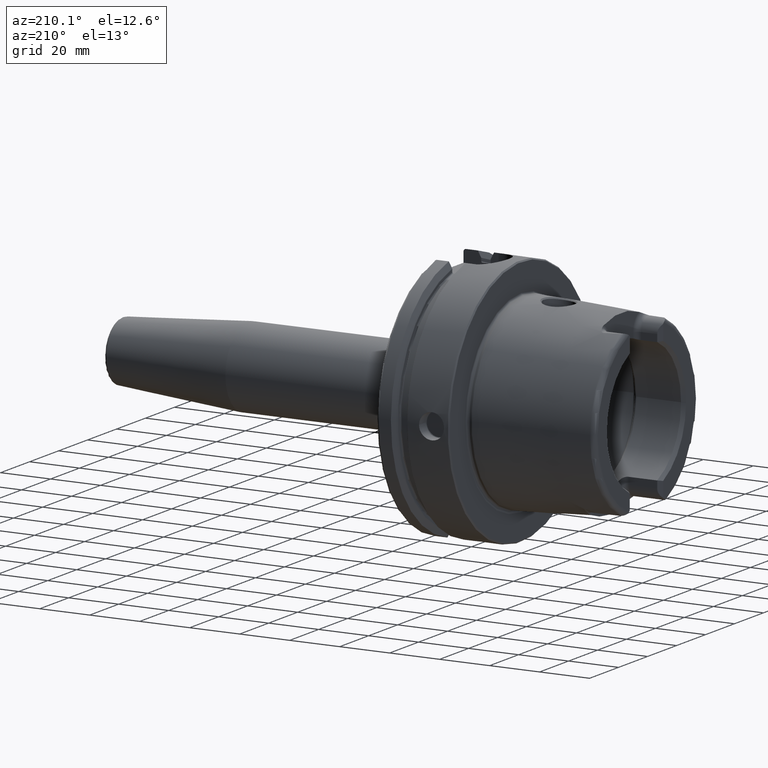
[diagram: clean part render]
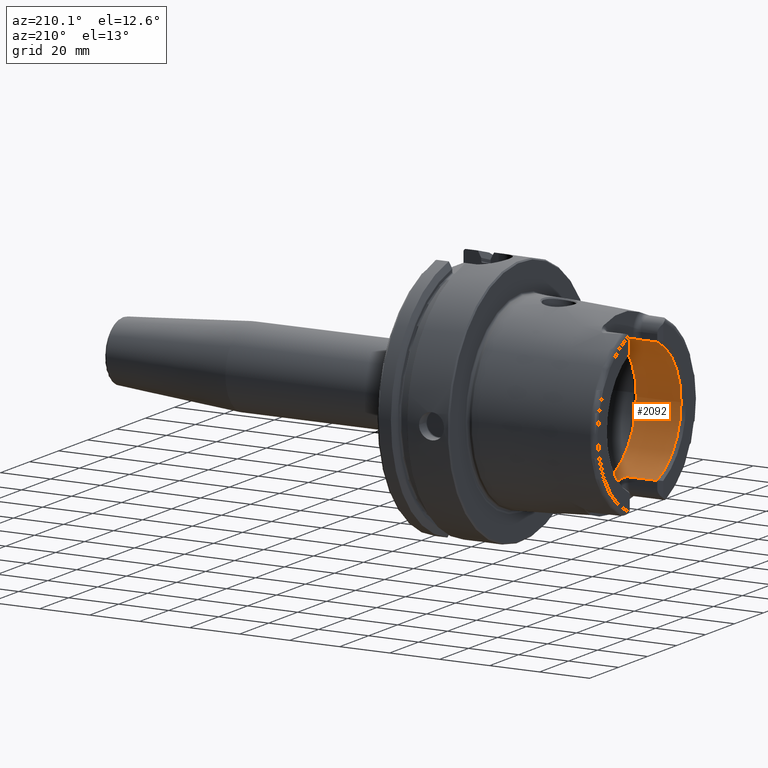
[diagram: same view with one face highlighted and labeled with its STEP entity id]
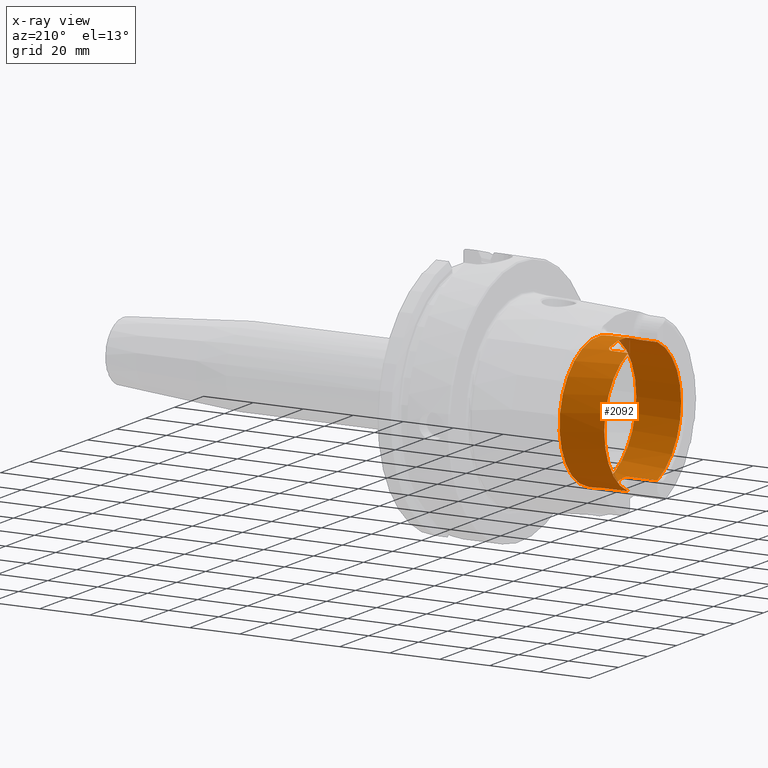
[diagram: x-ray of the same camera — body ghosted, the highlighted face saturated]
A machine part, auxiliary view. The second image highlights one B-rep face of the part: STEP entity #2092.
The next image is the same camera in x-ray: the body ghosted, the highlighted face saturated — about 1% of this face is hidden behind the body in this view.
In plain terms, the highlighted cylindrical surface (bore or boss wall) has radius 26.5 mm, axis along (-1, 0, 0).
Its self-contained STEP definition (entity closure, byte-faithful):
#80=B_SPLINE_CURVE_WITH_KNOTS('',3,(#4374,#4375,#4376,#4377,#4378,#4379,
#4380,#4381,#4382,#4383),.UNSPECIFIED.,.F.,.F.,(4,2,2,2,4),(0.307245873696209,
0.387318131676521,0.467390389656833,0.542677307505841,0.617964225354849),
 .UNSPECIFIED.);
#81=B_SPLINE_CURVE_WITH_KNOTS('',3,(#4392,#4393,#4394,#4395,#4396,#4397,
#4398,#4399,#4400,#4401),.UNSPECIFIED.,.F.,.F.,(4,2,2,2,4),(0.61796422535485,
0.694491364966707,0.771018504578565,0.849854597041439,0.928690689504313),
 .UNSPECIFIED.);
#82=B_SPLINE_CURVE_WITH_KNOTS('',3,(#4414,#4415,#4416,#4417,#4418,#4419,
#4420,#4421,#4422,#4423),.UNSPECIFIED.,.F.,.F.,(4,2,2,2,4),(0.617964225354849,
0.693251143203857,0.768538061052865,0.848610319033177,0.928682577013489),
 .UNSPECIFIED.);
#83=B_SPLINE_CURVE_WITH_KNOTS('',3,(#4443,#4444,#4445,#4446,#4447,#4448,
#4449,#4450,#4451,#4452),.UNSPECIFIED.,.F.,.F.,(4,2,2,2,4),(0.307245873696209,
0.387318131676521,0.467390389656833,0.542677307505841,0.617964225354849),
 .UNSPECIFIED.);
#206=CYLINDRICAL_SURFACE('',#2349,26.5);
#308=FACE_OUTER_BOUND('',#439,.T.);
#439=EDGE_LOOP('',(#1859,#1860,#1861,#1862,#1863,#1864,#1865,#1866,#1867,
#1868,#1869,#1870,#1871,#1872,#1873,#1874,#1875));
#490=LINE('',#3158,#596);
#498=LINE('',#3233,#604);
#502=LINE('',#3297,#608);
#561=LINE('',#4439,#667);
#565=LINE('',#4487,#671);
#596=VECTOR('',#2534,10.);
#604=VECTOR('',#2580,10.);
#608=VECTOR('',#2602,10.);
#667=VECTOR('',#2881,10.);
#671=VECTOR('',#2925,26.5);
#712=CIRCLE('',#2203,26.5);
#713=CIRCLE('',#2204,26.5);
#776=CIRCLE('',#2328,26.5);
#781=CIRCLE('',#2340,26.5);
#782=CIRCLE('',#2343,26.5);
#785=CIRCLE('',#2350,26.5);
#786=CIRCLE('',#2351,26.5);
#853=VERTEX_POINT('',#3148);
#856=VERTEX_POINT('',#3156);
#865=VERTEX_POINT('',#3205);
#867=VERTEX_POINT('',#3211);
#868=VERTEX_POINT('',#3213);
#874=VERTEX_POINT('',#3231);
#880=VERTEX_POINT('',#3264);
#885=VERTEX_POINT('',#3296);
#992=VERTEX_POINT('',#4372);
#994=VERTEX_POINT('',#4391);
#998=VERTEX_POINT('',#4412);
#999=VERTEX_POINT('',#4413);
#1001=VERTEX_POINT('',#4433);
#1003=VERTEX_POINT('',#4484);
#1004=VERTEX_POINT('',#4485);
#1077=EDGE_CURVE('',#853,#856,#490,.T.);
#1090=EDGE_CURVE('',#867,#868,#712,.T.);
#1091=EDGE_CURVE('',#868,#865,#713,.T.);
#1100=EDGE_CURVE('',#867,#874,#498,.T.);
#1113=EDGE_CURVE('',#885,#880,#502,.T.);
#1271=EDGE_CURVE('',#992,#874,#80,.T.);
#1275=EDGE_CURVE('',#885,#994,#81,.T.);
#1281=EDGE_CURVE('',#998,#999,#82,.T.);
#1287=EDGE_CURVE('',#1001,#999,#776,.T.);
#1290=EDGE_CURVE('',#998,#865,#561,.T.);
#1293=EDGE_CURVE('',#1001,#856,#83,.T.);
#1297=EDGE_CURVE('',#992,#994,#781,.T.);
#1299=EDGE_CURVE('',#853,#880,#782,.T.);
#1303=EDGE_CURVE('',#1003,#1004,#785,.T.);
#1304=EDGE_CURVE('',#1003,#868,#565,.T.);
#1305=EDGE_CURVE('',#1004,#1003,#786,.T.);
#1859=ORIENTED_EDGE('',*,*,#1303,.F.);
#1860=ORIENTED_EDGE('',*,*,#1304,.T.);
#1861=ORIENTED_EDGE('',*,*,#1090,.F.);
#1862=ORIENTED_EDGE('',*,*,#1100,.T.);
#1863=ORIENTED_EDGE('',*,*,#1271,.F.);
#1864=ORIENTED_EDGE('',*,*,#1297,.T.);
#1865=ORIENTED_EDGE('',*,*,#1275,.F.);
#1866=ORIENTED_EDGE('',*,*,#1113,.T.);
#1867=ORIENTED_EDGE('',*,*,#1299,.F.);
#1868=ORIENTED_EDGE('',*,*,#1077,.T.);
#1869=ORIENTED_EDGE('',*,*,#1293,.F.);
#1870=ORIENTED_EDGE('',*,*,#1287,.T.);
#1871=ORIENTED_EDGE('',*,*,#1281,.F.);
#1872=ORIENTED_EDGE('',*,*,#1290,.T.);
#1873=ORIENTED_EDGE('',*,*,#1091,.F.);
#1874=ORIENTED_EDGE('',*,*,#1304,.F.);
#1875=ORIENTED_EDGE('',*,*,#1305,.F.);
#2092=ADVANCED_FACE('',(#308),#206,.F.);
#2203=AXIS2_PLACEMENT_3D('',#3214,#2558,#2559);
#2204=AXIS2_PLACEMENT_3D('',#3215,#2560,#2561);
#2328=AXIS2_PLACEMENT_3D('',#4434,#2874,#2875);
#2340=AXIS2_PLACEMENT_3D('',#4461,#2902,#2903);
#2343=AXIS2_PLACEMENT_3D('',#4476,#2908,#2909);
#2349=AXIS2_PLACEMENT_3D('',#4483,#2921,#2922);
#2350=AXIS2_PLACEMENT_3D('',#4486,#2923,#2924);
#2351=AXIS2_PLACEMENT_3D('',#4488,#2926,#2927);
#2534=DIRECTION('',(1.,0.,0.));
#2558=DIRECTION('center_axis',(1.,0.,0.));
#2559=DIRECTION('ref_axis',(0.,-1.,0.));
#2560=DIRECTION('center_axis',(1.,0.,0.));
#2561=DIRECTION('ref_axis',(0.,-1.,0.));
#2580=DIRECTION('',(1.,0.,0.));
#2602=DIRECTION('',(-1.,0.,0.));
#2874=DIRECTION('center_axis',(-1.,0.,0.));
#2875=DIRECTION('ref_axis',(0.,1.,0.));
#2881=DIRECTION('',(-1.,0.,0.));
#2902=DIRECTION('center_axis',(-1.,0.,0.));
#2903=DIRECTION('ref_axis',(0.,1.,0.));
#2908=DIRECTION('center_axis',(1.,0.,0.));
#2909=DIRECTION('ref_axis',(0.,-1.,0.));
#2921=DIRECTION('center_axis',(-1.,0.,0.));
#2922=DIRECTION('ref_axis',(0.,1.,0.));
#2923=DIRECTION('center_axis',(-1.,0.,0.));
#2924=DIRECTION('ref_axis',(0.,0.,1.));
#2925=DIRECTION('',(-1.,0.,0.));
#2926=DIRECTION('center_axis',(-1.,0.,0.));
#2927=DIRECTION('ref_axis',(0.,0.,1.));
#3148=CARTESIAN_POINT('',(-48.5,10.01,-24.5367051577835));
#3156=CARTESIAN_POINT('',(-37.,10.01,-24.5367051577835));
#3158=CARTESIAN_POINT('',(-40.2903629710818,10.01,-24.5367051577835));
#3205=CARTESIAN_POINT('',(-48.5,-10.01,-24.5367051577835));
#3211=CARTESIAN_POINT('',(-48.5,-10.01,24.5367051577835));
#3213=CARTESIAN_POINT('',(-48.5,-26.5,3.24531401774049E-15));
#3214=CARTESIAN_POINT('Origin',(-48.5,0.,0.));
#3215=CARTESIAN_POINT('Origin',(-48.5,0.,0.));
#3231=CARTESIAN_POINT('',(-42.,-10.01,24.5367051577835));
#3233=CARTESIAN_POINT('',(-40.2903629710818,-10.01,24.5367051577835));
#3264=CARTESIAN_POINT('',(-48.5,10.01,24.5367051577835));
#3296=CARTESIAN_POINT('',(-42.,10.01,24.5367051577835));
#3297=CARTESIAN_POINT('',(-40.2903629710818,10.01,24.5367051577835));
#4372=CARTESIAN_POINT('',(-40.,-8.01,25.2604414054862));
#4374=CARTESIAN_POINT('Ctrl Pts',(-40.,-8.01,25.2604414054862));
#4375=CARTESIAN_POINT('Ctrl Pts',(-40.,-8.26442271458071,25.1797648285777));
#4376=CARTESIAN_POINT('Ctrl Pts',(-40.0513332778729,-8.53503831367686,25.0892968127514));
#4377=CARTESIAN_POINT('Ctrl Pts',(-40.2604388709541,-9.03317850506395,24.9142806373643));
#4378=CARTESIAN_POINT('Ctrl Pts',(-40.4182028025644,-9.2607746884821,24.8299262887475));
#4379=CARTESIAN_POINT('Ctrl Pts',(-40.7762398849713,-9.61038047170956,24.6966285655713));
#4380=CARTESIAN_POINT('Ctrl Pts',(-40.996584045901,-9.75993653512726,24.6374761492843));
#4381=CARTESIAN_POINT('Ctrl Pts',(-41.4829332858843,-9.95981108540838,24.557356442995));
#4382=CARTESIAN_POINT('Ctrl Pts',(-41.74904360717,-10.01,24.5367051577835));
#4383=CARTESIAN_POINT('Ctrl Pts',(-42.,-10.01,24.5367051577835));
#4391=CARTESIAN_POINT('',(-40.,8.01,25.2604414054862));
#4392=CARTESIAN_POINT('Ctrl Pts',(-42.,10.01,24.5367051577835));
#4393=CARTESIAN_POINT('Ctrl Pts',(-41.7449095346271,10.01,24.5367051577835));
#4394=CARTESIAN_POINT('Ctrl Pts',(-41.4747619014646,9.95816285425487,24.5580391842641));
#4395=CARTESIAN_POINT('Ctrl Pts',(-40.9823460284033,9.75229566196282,24.640515927451));
#4396=CARTESIAN_POINT('Ctrl Pts',(-40.7599680829949,9.59839520774108,24.7013267120605));
#4397=CARTESIAN_POINT('Ctrl Pts',(-40.4063494382929,9.24477656303909,24.8358806096526));
#4398=CARTESIAN_POINT('Ctrl Pts',(-40.2529543645221,9.01930384320105,24.9192727261742));
#4399=CARTESIAN_POINT('Ctrl Pts',(-40.049776768453,8.52719637786957,25.0919293188873));
#4400=CARTESIAN_POINT('Ctrl Pts',(-40.,8.26049490494288,25.1810103236462));
#4401=CARTESIAN_POINT('Ctrl Pts',(-40.,8.01,25.2604414054862));
#4412=CARTESIAN_POINT('',(-37.,-10.01,-24.5367051577835));
#4413=CARTESIAN_POINT('',(-35.,-8.01,-25.2604414054862));
#4414=CARTESIAN_POINT('Ctrl Pts',(-37.,-10.01,-24.5367051577835));
#4415=CARTESIAN_POINT('Ctrl Pts',(-36.74904360717,-10.01,-24.5367051577835));
#4416=CARTESIAN_POINT('Ctrl Pts',(-36.4829332858843,-9.95981108540838,-24.557356442995));
#4417=CARTESIAN_POINT('Ctrl Pts',(-35.9965840459011,-9.75993653512726,-24.6374761492843));
#4418=CARTESIAN_POINT('Ctrl Pts',(-35.7762398849713,-9.61038047170956,-24.6966285655713));
#4419=CARTESIAN_POINT('Ctrl Pts',(-35.4182028025644,-9.2607746884821,-24.8299262887475));
#4420=CARTESIAN_POINT('Ctrl Pts',(-35.2604388709541,-9.03317850506395,-24.9142806373643));
#4421=CARTESIAN_POINT('Ctrl Pts',(-35.0513332778729,-8.53503831367686,-25.0892968127514));
#4422=CARTESIAN_POINT('Ctrl Pts',(-35.,-8.26442271458071,-25.1797648285777));
#4423=CARTESIAN_POINT('Ctrl Pts',(-35.,-8.01,-25.2604414054862));
#4433=CARTESIAN_POINT('',(-35.,8.01,-25.2604414054862));
#4434=CARTESIAN_POINT('Origin',(-35.,0.,0.));
#4439=CARTESIAN_POINT('',(-40.2903629710818,-10.01,-24.5367051577835));
#4443=CARTESIAN_POINT('Ctrl Pts',(-35.,8.01,-25.2604414054862));
#4444=CARTESIAN_POINT('Ctrl Pts',(-35.,8.26442271458071,-25.1797648285777));
#4445=CARTESIAN_POINT('Ctrl Pts',(-35.0513332778729,8.53503831367686,-25.0892968127514));
#4446=CARTESIAN_POINT('Ctrl Pts',(-35.2604388709541,9.03317850506395,-24.9142806373643));
#4447=CARTESIAN_POINT('Ctrl Pts',(-35.4182028025644,9.2607746884821,-24.8299262887475));
#4448=CARTESIAN_POINT('Ctrl Pts',(-35.7762398849713,9.61038047170956,-24.6966285655713));
#4449=CARTESIAN_POINT('Ctrl Pts',(-35.9965840459011,9.75993653512726,-24.6374761492843));
#4450=CARTESIAN_POINT('Ctrl Pts',(-36.4829332858843,9.95981108540838,-24.557356442995));
#4451=CARTESIAN_POINT('Ctrl Pts',(-36.74904360717,10.01,-24.5367051577835));
#4452=CARTESIAN_POINT('Ctrl Pts',(-37.,10.01,-24.5367051577835));
#4461=CARTESIAN_POINT('Origin',(-40.,0.,0.));
#4476=CARTESIAN_POINT('Origin',(-48.5,0.,0.));
#4483=CARTESIAN_POINT('Origin',(-40.2903629710818,0.,0.));
#4484=CARTESIAN_POINT('',(-30.5807259421637,-26.5,3.24531401774049E-15));
#4485=CARTESIAN_POINT('',(-30.5807259421637,-3.24531401774049E-15,-26.5));
#4486=CARTESIAN_POINT('Origin',(-30.5807259421637,0.,0.));
#4487=CARTESIAN_POINT('',(-40.2903629710818,-26.5,3.24531401774049E-15));
#4488=CARTESIAN_POINT('Origin',(-30.5807259421637,0.,0.));